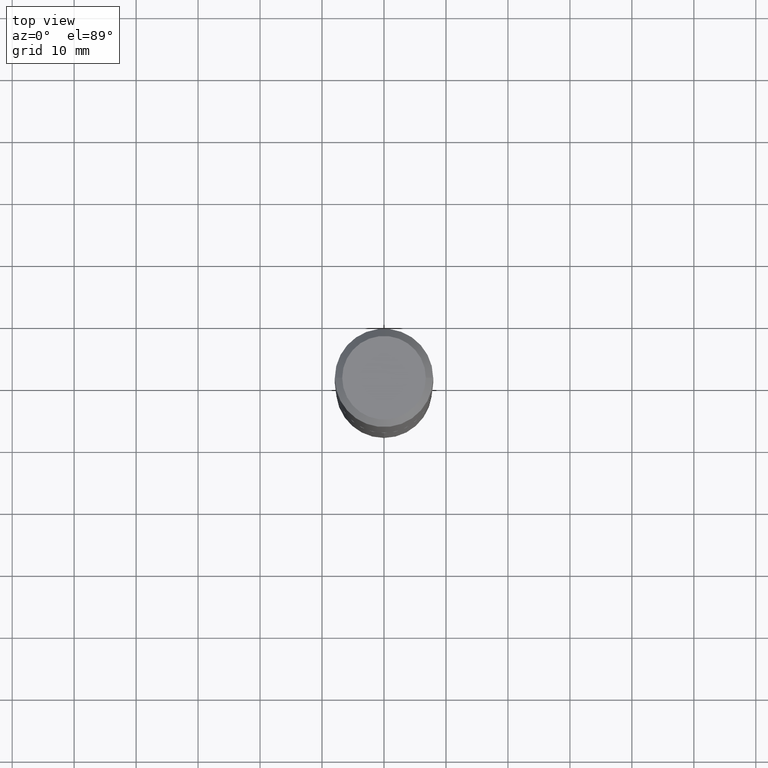
[diagram: clean part render]
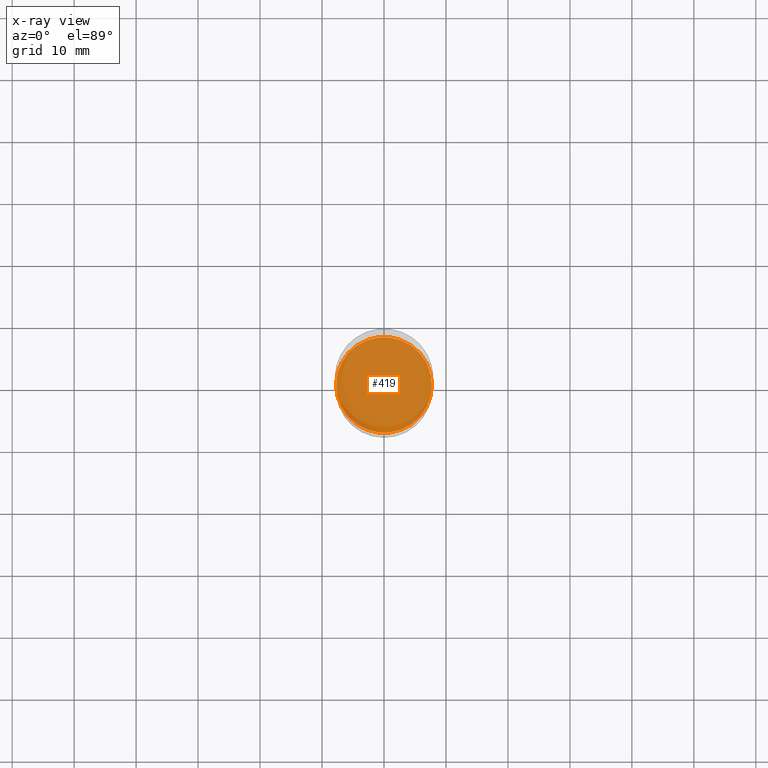
[diagram: x-ray — body ghosted, one internal face saturated and labeled with its STEP entity id]
A machine part, top view, then the same camera in x-ray: the body is ghosted and one INTERNAL B-rep face — a face not visible from any outside direction — is saturated and labeled: STEP entity #419.
In plain terms, the highlighted planar face has unit normal (-0, 0, 1).
Its self-contained STEP definition (entity closure, byte-faithful):
#16 = CARTESIAN_POINT ( 'NONE',  ( 0.3042000000000000259, -1.145310623580716044E-14, -2.671899999999999498 ) ) ;
#39 = EDGE_CURVE ( 'NONE', #220, #162, #208, .T. ) ;
#54 = ORIENTED_EDGE ( 'NONE', *, *, #39, .F. ) ;
#89 = CARTESIAN_POINT ( 'NONE',  ( -0.3042000000000000259, -7.164768759898662229E-15, -2.671899999999999498 ) ) ;
#107 = CARTESIAN_POINT ( 'NONE',  ( 6.534048103246064579E-29, -9.328888989254999169E-15, -2.671899999999999498 ) ) ;
#139 = EDGE_LOOP ( 'NONE', ( #362, #54 ) ) ;
#140 = DIRECTION ( 'NONE',  ( -2.438088387897960049E-29, 3.491481338843145188E-15, 1.000000000000000000 ) ) ;
#161 = CARTESIAN_POINT ( 'NONE',  ( 6.534048103246064579E-29, -9.328888989254999169E-15, -2.671899999999999498 ) ) ;
#162 = VERTEX_POINT ( 'NONE', #16 ) ;
#208 = CIRCLE ( 'NONE', #215, 0.3042000000000000259 ) ;
#215 = AXIS2_PLACEMENT_3D ( 'NONE', #161, #318, #424 ) ;
#220 = VERTEX_POINT ( 'NONE', #89 ) ;
#221 = FACE_OUTER_BOUND ( 'NONE', #139, .T. ) ;
#224 = DIRECTION ( 'NONE',  ( 1.000000000000000000, -6.982962677686265922E-15, 4.876176775795935793E-29 ) ) ;
#260 = DIRECTION ( 'NONE',  ( 1.000000000000000000, -6.982962677686266711E-15, 0.000000000000000000 ) ) ;
#265 = CIRCLE ( 'NONE', #469, 0.3042000000000000259 ) ;
#318 = DIRECTION ( 'NONE',  ( -2.445468806185136597E-29, 3.491481338843145583E-15, 1.000000000000000000 ) ) ;
#336 = CARTESIAN_POINT ( 'NONE',  ( 6.534048103246064579E-29, -9.328888989254999169E-15, -2.671899999999999498 ) ) ;
#362 = ORIENTED_EDGE ( 'NONE', *, *, #416, .F. ) ;
#372 = PLANE ( 'NONE',  #414 ) ;
#414 = AXIS2_PLACEMENT_3D ( 'NONE', #336, #140, #224 ) ;
#416 = EDGE_CURVE ( 'NONE', #162, #220, #265, .T. ) ;
#419 = ADVANCED_FACE ( 'NONE', ( #221 ), #372, .F. ) ;
#424 = DIRECTION ( 'NONE',  ( 1.000000000000000000, -6.982962677686266711E-15, 0.000000000000000000 ) ) ;
#453 = DIRECTION ( 'NONE',  ( -2.445468806185136597E-29, 3.491481338843145583E-15, 1.000000000000000000 ) ) ;
#469 = AXIS2_PLACEMENT_3D ( 'NONE', #107, #453, #260 ) ;